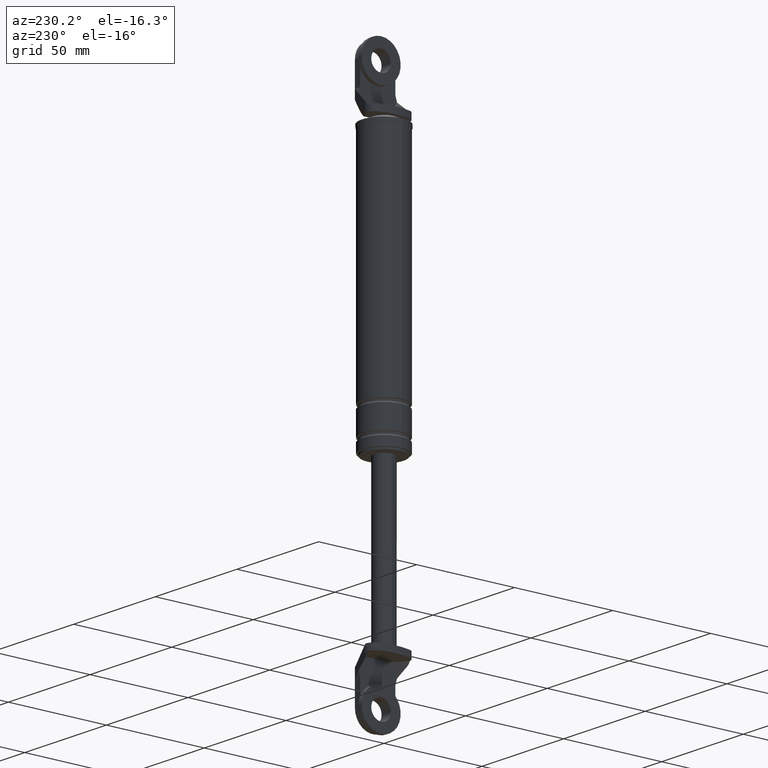
[diagram: clean part render]
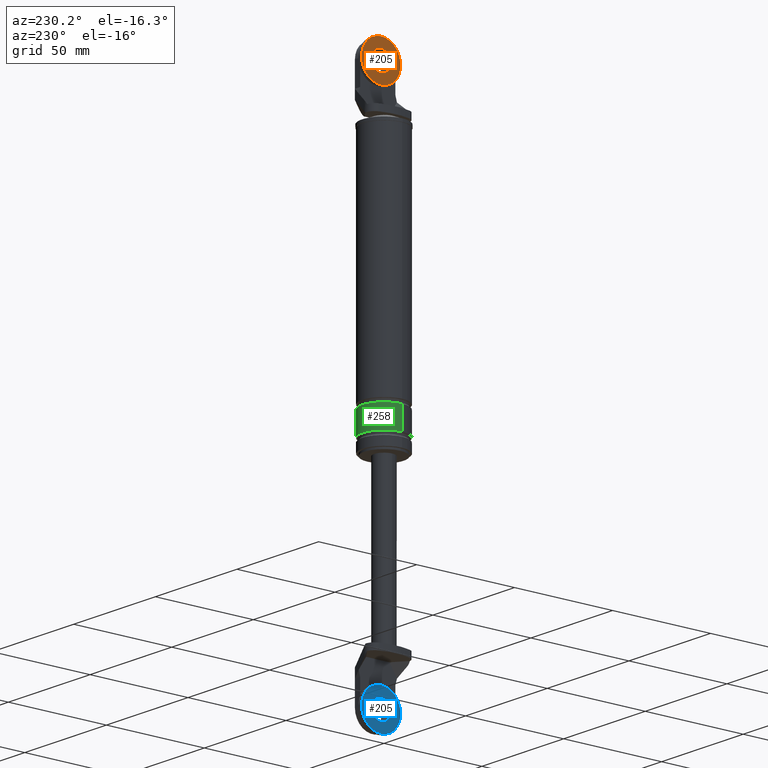
[diagram: same view with three faces highlighted in distinct colors, each labeled with its STEP entity id]
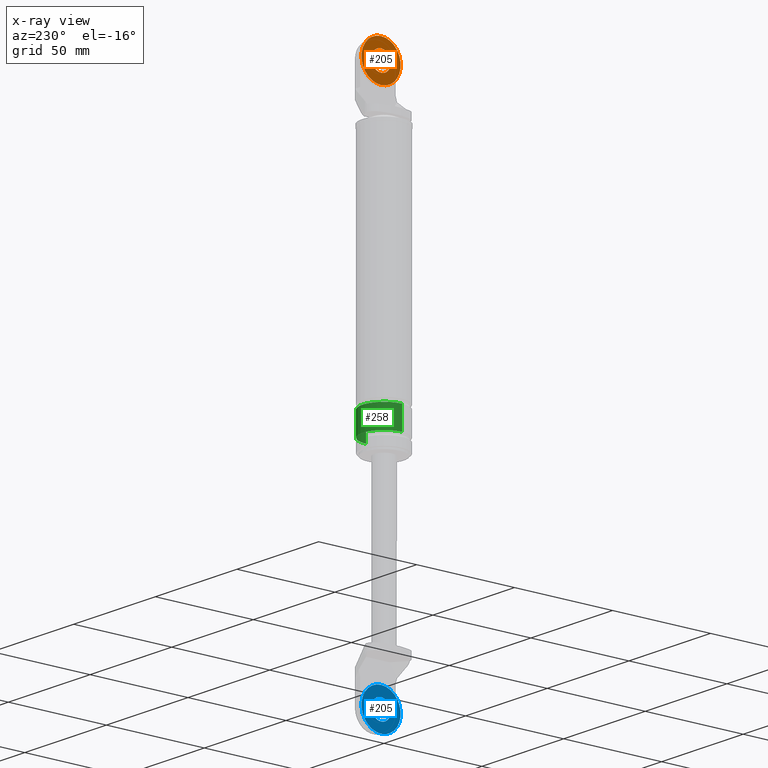
[diagram: x-ray of the same camera — body ghosted, the three highlighted faces saturated]
A machine part, auxiliary view with three faces highlighted in distinct colors.
The next image is the same camera in x-ray (body ghosted, the three faces saturated) — at least one of them is partly hidden behind the body in this view.
Their STEP definitions:

[orange] entity #205 — the highlighted planar face has unit normal (1, 0, 0).
#205=ADVANCED_FACE('',(#299,#300),#298,.F.);
#298=PLANE('',#1137);
#299=FACE_OUTER_BOUND('',#1138,.T.);
#300=FACE_BOUND('',#1139,.T.);
#1134=CARTESIAN_POINT('',(-6.90000460000E+001,2.07846096908E+001,2.76000000000E+002));
#1135=DIRECTION('',(1.00000000000E+000,0.00000000000E+000,0.00000000000E+000));
#1136=DIRECTION('',(0.00000000000E+000,-1.00000000000E+000,0.00000000000E+000));
#1137=AXIS2_PLACEMENT_3D('',#1134,#1135,#1136);
#1138=EDGE_LOOP('',(#1784,#1785));
#1139=EDGE_LOOP('',(#1786,#1787));
#1784=ORIENTED_EDGE('',*,*,#2184,.T.);
#1785=ORIENTED_EDGE('',*,*,#2185,.T.);
#1786=ORIENTED_EDGE('',*,*,#2186,.F.);
#1787=ORIENTED_EDGE('',*,*,#2187,.F.);
#2184=EDGE_CURVE('',#2408,#2409,#2410,.T.);
#2185=EDGE_CURVE('',#2409,#2408,#2416,.T.);
#2186=EDGE_CURVE('',#2422,#2423,#2424,.T.);
#2187=EDGE_CURVE('',#2423,#2422,#2430,.T.);
#2408=VERTEX_POINT('',#3728);
#2409=VERTEX_POINT('',#3729);
#2410=CIRCLE('',#3733,1.00000000000E+001);
#2416=CIRCLE('',#3737,1.00000000000E+001);
#2422=VERTEX_POINT('',#3738);
#2423=VERTEX_POINT('',#3739);
#2424=CIRCLE('',#3743,5.00000000000E+000);
#2430=CIRCLE('',#3747,5.00000000000E+000);
#3728=CARTESIAN_POINT('',(-6.90000460000E+001,5.68434188608E-014,2.43000000000E+002));
#3729=CARTESIAN_POINT('',(-6.90000460000E+001,5.80276567537E-014,2.63000000000E+002));
#3730=CARTESIAN_POINT('',(-6.90000460000E+001,5.68434188608E-014,2.53000000000E+002));
#3731=DIRECTION('',(-1.00000000000E+000,0.00000000000E+000,-0.00000000000E+000));
#3732=DIRECTION('',(0.00000000000E+000,-1.22460635382E-016,-1.00000000000E+000));
#3733=AXIS2_PLACEMENT_3D('',#3730,#3731,#3732);
#3734=CARTESIAN_POINT('',(-6.90000460000E+001,5.68434188608E-014,2.53000000000E+002));
#3735=DIRECTION('',(-1.00000000000E+000,0.00000000000E+000,-0.00000000000E+000));
#3736=DIRECTION('',(0.00000000000E+000,-1.22460635382E-016,-1.00000000000E+000));
#3737=AXIS2_PLACEMENT_3D('',#3734,#3735,#3736);
#3738=CARTESIAN_POINT('',(-6.90000460000E+001,5.74355378073E-014,2.58000000000E+002));
#3739=CARTESIAN_POINT('',(-6.90000460000E+001,5.68434188608E-014,2.48000000000E+002));
#3740=CARTESIAN_POINT('',(-6.90000460000E+001,5.68434188608E-014,2.53000000000E+002));
#3741=DIRECTION('',(-1.00000000000E+000,0.00000000000E+000,-0.00000000000E+000));
#3742=DIRECTION('',(0.00000000000E+000,-1.22460635382E-016,-1.00000000000E+000));
#3743=AXIS2_PLACEMENT_3D('',#3740,#3741,#3742);
#3744=CARTESIAN_POINT('',(-6.90000460000E+001,5.68434188608E-014,2.53000000000E+002));
#3745=DIRECTION('',(-1.00000000000E+000,0.00000000000E+000,-0.00000000000E+000));
#3746=DIRECTION('',(0.00000000000E+000,-1.22460635382E-016,-1.00000000000E+000));
#3747=AXIS2_PLACEMENT_3D('',#3744,#3745,#3746);

[blue] entity #205 — the highlighted planar face has unit normal (1, 0, 0).
#205=ADVANCED_FACE('',(#299,#300),#298,.F.);
#298=PLANE('',#1137);
#299=FACE_OUTER_BOUND('',#1138,.T.);
#300=FACE_BOUND('',#1139,.T.);
#1134=CARTESIAN_POINT('',(-6.90000460000E+001,2.07846096908E+001,2.76000000000E+002));
#1135=DIRECTION('',(1.00000000000E+000,0.00000000000E+000,0.00000000000E+000));
#1136=DIRECTION('',(0.00000000000E+000,-1.00000000000E+000,0.00000000000E+000));
#1137=AXIS2_PLACEMENT_3D('',#1134,#1135,#1136);
#1138=EDGE_LOOP('',(#1784,#1785));
#1139=EDGE_LOOP('',(#1786,#1787));
#1784=ORIENTED_EDGE('',*,*,#2184,.T.);
#1785=ORIENTED_EDGE('',*,*,#2185,.T.);
#1786=ORIENTED_EDGE('',*,*,#2186,.F.);
#1787=ORIENTED_EDGE('',*,*,#2187,.F.);
#2184=EDGE_CURVE('',#2408,#2409,#2410,.T.);
#2185=EDGE_CURVE('',#2409,#2408,#2416,.T.);
#2186=EDGE_CURVE('',#2422,#2423,#2424,.T.);
#2187=EDGE_CURVE('',#2423,#2422,#2430,.T.);
#2408=VERTEX_POINT('',#3728);
#2409=VERTEX_POINT('',#3729);
#2410=CIRCLE('',#3733,1.00000000000E+001);
#2416=CIRCLE('',#3737,1.00000000000E+001);
#2422=VERTEX_POINT('',#3738);
#2423=VERTEX_POINT('',#3739);
#2424=CIRCLE('',#3743,5.00000000000E+000);
#2430=CIRCLE('',#3747,5.00000000000E+000);
#3728=CARTESIAN_POINT('',(-6.90000460000E+001,5.68434188608E-014,2.43000000000E+002));
#3729=CARTESIAN_POINT('',(-6.90000460000E+001,5.80276567537E-014,2.63000000000E+002));
#3730=CARTESIAN_POINT('',(-6.90000460000E+001,5.68434188608E-014,2.53000000000E+002));
#3731=DIRECTION('',(-1.00000000000E+000,0.00000000000E+000,-0.00000000000E+000));
#3732=DIRECTION('',(0.00000000000E+000,-1.22460635382E-016,-1.00000000000E+000));
#3733=AXIS2_PLACEMENT_3D('',#3730,#3731,#3732);
#3734=CARTESIAN_POINT('',(-6.90000460000E+001,5.68434188608E-014,2.53000000000E+002));
#3735=DIRECTION('',(-1.00000000000E+000,0.00000000000E+000,-0.00000000000E+000));
#3736=DIRECTION('',(0.00000000000E+000,-1.22460635382E-016,-1.00000000000E+000));
#3737=AXIS2_PLACEMENT_3D('',#3734,#3735,#3736);
#3738=CARTESIAN_POINT('',(-6.90000460000E+001,5.74355378073E-014,2.58000000000E+002));
#3739=CARTESIAN_POINT('',(-6.90000460000E+001,5.68434188608E-014,2.48000000000E+002));
#3740=CARTESIAN_POINT('',(-6.90000460000E+001,5.68434188608E-014,2.53000000000E+002));
#3741=DIRECTION('',(-1.00000000000E+000,0.00000000000E+000,-0.00000000000E+000));
#3742=DIRECTION('',(0.00000000000E+000,-1.22460635382E-016,-1.00000000000E+000));
#3743=AXIS2_PLACEMENT_3D('',#3740,#3741,#3742);
#3744=CARTESIAN_POINT('',(-6.90000460000E+001,5.68434188608E-014,2.53000000000E+002));
#3745=DIRECTION('',(-1.00000000000E+000,0.00000000000E+000,-0.00000000000E+000));
#3746=DIRECTION('',(0.00000000000E+000,-1.22460635382E-016,-1.00000000000E+000));
#3747=AXIS2_PLACEMENT_3D('',#3744,#3745,#3746);

[green] entity #258 — the highlighted cylindrical surface (edge-blend (fillet) strip) has radius 11 mm, axis along (0, 0, 1).
#258=ADVANCED_FACE('',(#837),#836,.T.);
#836=CYLINDRICAL_SURFACE('',#1586,1.10000000000E+001);
#837=FACE_OUTER_BOUND('',#1587,.T.);
#1583=CARTESIAN_POINT('',(0.00000000000E+000,3.58204186421E-014,0.00000000000E+000));
#1584=DIRECTION('',(-0.00000000000E+000,-0.00000000000E+000,1.00000000000E+000));
#1585=DIRECTION('',(1.00000000000E+000,0.00000000000E+000,0.00000000000E+000));
#1586=AXIS2_PLACEMENT_3D('',#1583,#1584,#1585);
#1587=EDGE_LOOP('',(#2030,#2031,#2032,#2033));
#2030=ORIENTED_EDGE('',*,*,#2289,.T.);
#2031=ORIENTED_EDGE('',*,*,#2307,.F.);
#2032=ORIENTED_EDGE('',*,*,#2303,.F.);
#2033=ORIENTED_EDGE('',*,*,#2308,.T.);
#2289=EDGE_CURVE('',#3111,#3104,#3112,.T.);
#2303=EDGE_CURVE('',#3198,#3199,#3200,.T.);
#2307=EDGE_CURVE('',#3199,#3104,#3224,.T.);
#2308=EDGE_CURVE('',#3198,#3111,#3230,.T.);
#3104=VERTEX_POINT('',#4161);
#3111=VERTEX_POINT('',#4167);
#3112=CIRCLE('',#4171,1.10000000000E+001);
#3198=VERTEX_POINT('',#4211);
#3199=VERTEX_POINT('',#4212);
#3200=CIRCLE('',#4216,1.10000000000E+001);
#3224=(BOUNDED_CURVE() B_SPLINE_CURVE(1,(#4231,#4232),.UNSPECIFIED.,.F.,.F.) B_SPLINE_CURVE_WITH_KNOTS((2,2),(8.33333343261E-002,9.16666667006E-001),.UNSPECIFIED.) CURVE() GEOMETRIC_REPRESENTATION_ITEM() RATIONAL_B_SPLINE_CURVE((1.00000000000E+000,1.00000000000E+000)) REPRESENTATION_ITEM('') );
#3230=(BOUNDED_CURVE() B_SPLINE_CURVE(1,(#4233,#4234),.UNSPECIFIED.,.F.,.F.) B_SPLINE_CURVE_WITH_KNOTS((2,2),(8.33333333333E-002,9.16666666667E-001),.UNSPECIFIED.) CURVE() GEOMETRIC_REPRESENTATION_ITEM() RATIONAL_B_SPLINE_CURVE((7.50000000000E-001,7.50000000000E-001)) REPRESENTATION_ITEM('') );
#4161=CARTESIAN_POINT('',(1.10000000000E+001,3.61192557345E-014,-3.00000150000E+001));
#4167=CARTESIAN_POINT('',(-1.10000000000E+001,3.58204186421E-014,-3.00000150000E+001));
#4168=CARTESIAN_POINT('',(0.00000000000E+000,3.58204186421E-014,-3.00000150000E+001));
#4169=DIRECTION('',(-0.00000000000E+000,0.00000000000E+000,-1.00000000000E+000));
#4170=DIRECTION('',(-1.00000000000E+000,-1.22460635382E-016,0.00000000000E+000));
#4171=AXIS2_PLACEMENT_3D('',#4168,#4169,#4170);
#4211=CARTESIAN_POINT('',(-1.10000000000E+001,3.58204186421E-014,-4.15000150000E+001));
#4212=CARTESIAN_POINT('',(1.10000000000E+001,3.61192557345E-014,-4.15000150000E+001));
#4213=CARTESIAN_POINT('',(0.00000000000E+000,3.58204186421E-014,-4.15000150000E+001));
#4214=DIRECTION('',(-0.00000000000E+000,0.00000000000E+000,-1.00000000000E+000));
#4215=DIRECTION('',(-1.00000000000E+000,-1.22460635382E-016,0.00000000000E+000));
#4216=AXIS2_PLACEMENT_3D('',#4213,#4214,#4215);
#4231=CARTESIAN_POINT('',(1.10000000000E+001,3.58204186421E-014,-4.15000149863E+001));
#4232=CARTESIAN_POINT('',(1.10000000000E+001,3.58204186421E-014,-3.00000149953E+001));
#4233=CARTESIAN_POINT('',(-1.10000000000E+001,3.55271367880E-014,-4.15000150000E+001));
#4234=CARTESIAN_POINT('',(-1.10000000000E+001,3.55271367880E-014,-3.00000150000E+001));